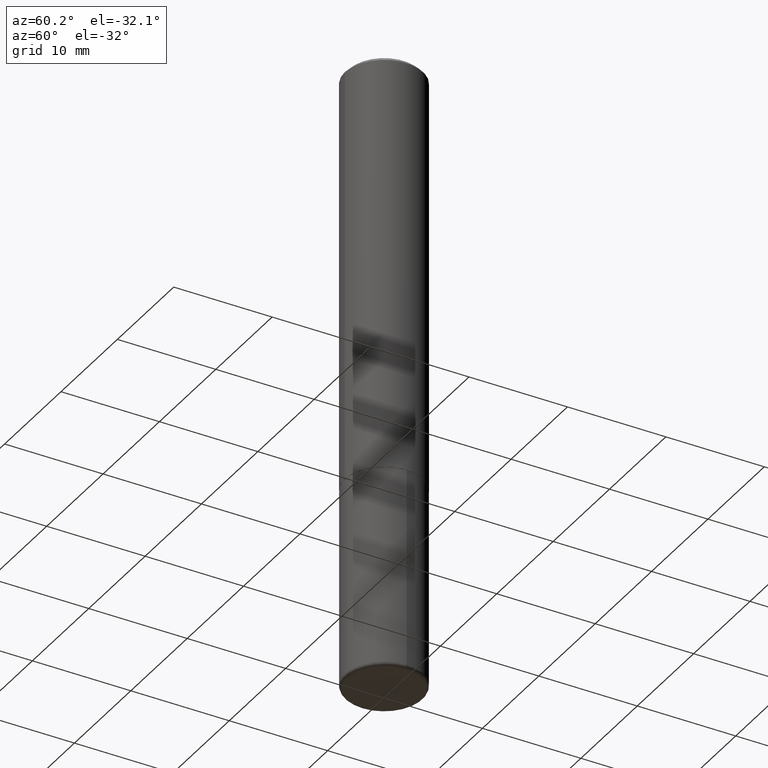
[diagram: clean part render]
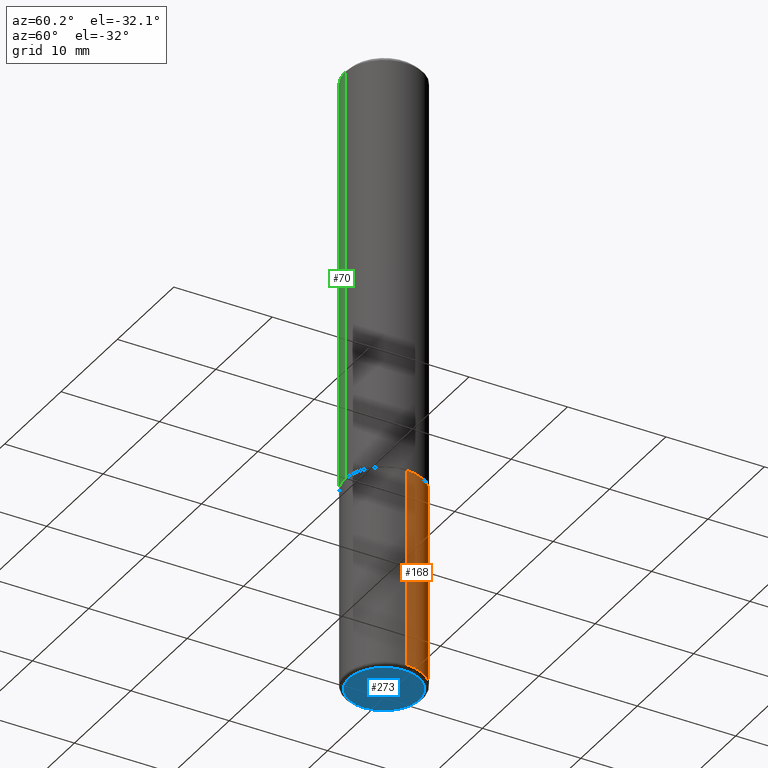
[diagram: same view with three faces highlighted in distinct colors, each labeled with its STEP entity id]
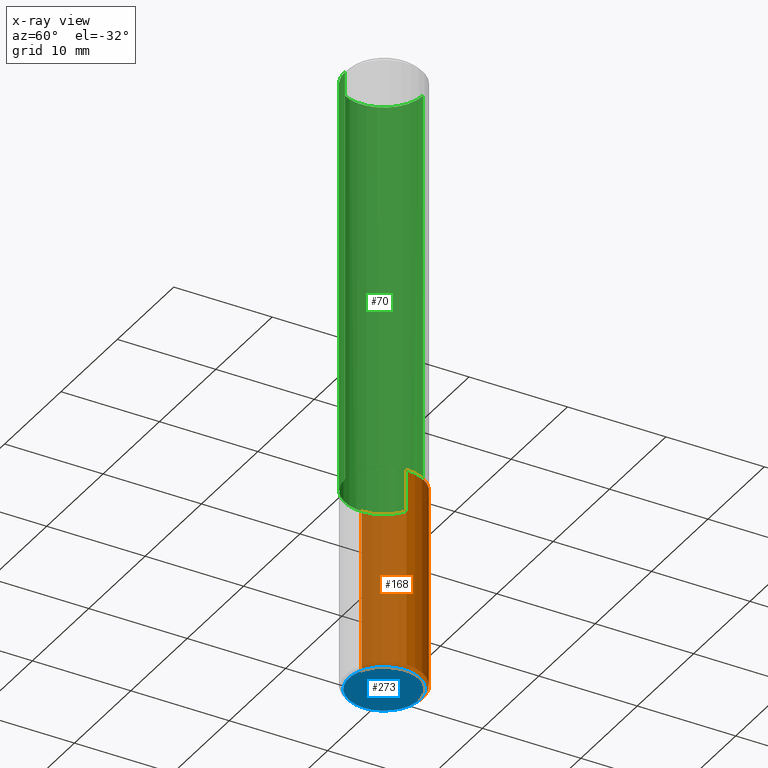
[diagram: x-ray of the same camera — body ghosted, the three highlighted faces saturated]
A machine part, auxiliary view with three faces highlighted in distinct colors.
The next image is the same camera in x-ray (body ghosted, the three faces saturated) — at least one of them is partly hidden behind the body in this view.
Their STEP definitions:

[orange] entity #168 — the highlighted cylindrical surface (partial cylindrical patch) has radius 3.9688 mm, axis along (-0, 0, 1).
#43 = AXIS2_PLACEMENT_3D ( 'NONE', #398, #150, #211 ) ;
#79 = CARTESIAN_POINT ( 'NONE',  ( 0.1562500000000000000, -6.984708418355709513E-15, -1.688000000000000167 ) ) ;
#99 = CARTESIAN_POINT ( 'NONE',  ( -0.1562500000000000000, 1.110223024625156540E-15, -7.685836078523291160E-30 ) ) ;
#101 = VERTEX_POINT ( 'NONE', #262 ) ;
#114 = DIRECTION ( 'NONE',  ( 1.000000000000000000, -6.982962677686266711E-15, 4.876176775795936353E-29 ) ) ;
#129 = AXIS2_PLACEMENT_3D ( 'NONE', #237, #147, #114 ) ;
#131 = LINE ( 'NONE', #99, #183 ) ;
#132 = EDGE_CURVE ( 'NONE', #347, #156, #271, .T. ) ;
#147 = DIRECTION ( 'NONE',  ( -2.445468806185136597E-29, 3.491481338843145583E-15, 1.000000000000000000 ) ) ;
#149 = VECTOR ( 'NONE', #357, 39.37007874015748143 ) ;
#150 = DIRECTION ( 'NONE',  ( -2.445468806185136597E-29, 3.491481338843145583E-15, 1.000000000000000000 ) ) ;
#156 = VERTEX_POINT ( 'NONE', #79 ) ;
#157 = DIRECTION ( 'NONE',  ( 1.000000000000000000, -6.982962677686270655E-15, 0.000000000000000000 ) ) ;
#165 = DIRECTION ( 'NONE',  ( -2.445468806185136597E-29, 3.491481338843145583E-15, 1.000000000000000000 ) ) ;
#168 = ADVANCED_FACE ( 'NONE', ( #334 ), #309, .T. ) ;
#183 = VECTOR ( 'NONE', #226, 39.37007874015748143 ) ;
#199 = EDGE_CURVE ( 'NONE', #156, #390, #331, .T. ) ;
#203 = ORIENTED_EDGE ( 'NONE', *, *, #394, .T. ) ;
#204 = CIRCLE ( 'NONE', #275, 0.1562499999999999722 ) ;
#211 = DIRECTION ( 'NONE',  ( 1.000000000000000000, -6.982962677686269077E-15, 0.000000000000000000 ) ) ;
#226 = DIRECTION ( 'NONE',  ( -2.445468806185136877E-29, 3.491481338843145188E-15, 1.000000000000000000 ) ) ;
#237 = CARTESIAN_POINT ( 'NONE',  ( 0.000000000000000000, 0.000000000000000000, 0.000000000000000000 ) ) ;
#258 = EDGE_LOOP ( 'NONE', ( #356, #203, #313, #352 ) ) ;
#262 = CARTESIAN_POINT ( 'NONE',  ( -0.1562499999999999167, -7.566108102400061717E-15, -2.484999999999999876 ) ) ;
#271 = LINE ( 'NONE', #386, #149 ) ;
#275 = AXIS2_PLACEMENT_3D ( 'NONE', #415, #165, #157 ) ;
#300 = CARTESIAN_POINT ( 'NONE',  ( -0.1562500000000000000, -6.174752788871067364E-15, -1.688000000000000167 ) ) ;
#309 = CYLINDRICAL_SURFACE ( 'NONE', #129, 0.1562500000000000000 ) ;
#313 = ORIENTED_EDGE ( 'NONE', *, *, #199, .F. ) ;
#328 = EDGE_CURVE ( 'NONE', #347, #101, #204, .T. ) ;
#331 = CIRCLE ( 'NONE', #43, 0.1562500000000000000 ) ;
#334 = FACE_OUTER_BOUND ( 'NONE', #258, .T. ) ;
#347 = VERTEX_POINT ( 'NONE', #355 ) ;
#352 = ORIENTED_EDGE ( 'NONE', *, *, #132, .F. ) ;
#355 = CARTESIAN_POINT ( 'NONE',  ( 0.1562499999999999167, -9.767419045413696643E-15, -2.484999999999999876 ) ) ;
#356 = ORIENTED_EDGE ( 'NONE', *, *, #328, .T. ) ;
#357 = DIRECTION ( 'NONE',  ( -2.445468806185136877E-29, 3.491481338843145188E-15, 1.000000000000000000 ) ) ;
#386 = CARTESIAN_POINT ( 'NONE',  ( 0.1562500000000000000, -1.091087918388479174E-15, 7.619026212181150377E-30 ) ) ;
#390 = VERTEX_POINT ( 'NONE', #300 ) ;
#394 = EDGE_CURVE ( 'NONE', #101, #390, #131, .T. ) ;
#398 = CARTESIAN_POINT ( 'NONE',  ( 4.127951344840510809E-29, -5.893620499967230340E-15, -1.688000000000000167 ) ) ;
#415 = CARTESIAN_POINT ( 'NONE',  ( 6.076989983370064174E-29, -8.676331127025216680E-15, -2.484999999999999876 ) ) ;

[blue] entity #273 — the highlighted planar face has unit normal (0, -0, -1).
#7 = VERTEX_POINT ( 'NONE', #52 ) ;
#17 = EDGE_LOOP ( 'NONE', ( #385, #364 ) ) ;
#27 = CARTESIAN_POINT ( 'NONE',  ( 0.1412499999999999867, -9.715046825331048380E-15, -2.499999999999999556 ) ) ;
#52 = CARTESIAN_POINT ( 'NONE',  ( -0.1412499999999999867, -7.645584917623391438E-15, -2.499999999999999556 ) ) ;
#90 = FACE_OUTER_BOUND ( 'NONE', #17, .T. ) ;
#106 = EDGE_CURVE ( 'NONE', #276, #7, #397, .T. ) ;
#113 = PLANE ( 'NONE',  #304 ) ;
#121 = DIRECTION ( 'NONE',  ( -2.445468806185136597E-29, 3.491481338843145583E-15, 1.000000000000000000 ) ) ;
#128 = DIRECTION ( 'NONE',  ( -1.000000000000000000, 6.982962677686265922E-15, -4.876176775795935793E-29 ) ) ;
#134 = DIRECTION ( 'NONE',  ( 1.000000000000000000, -6.982962677686270655E-15, 0.000000000000000000 ) ) ;
#227 = DIRECTION ( 'NONE',  ( -2.445468806185136597E-29, 3.491481338843145583E-15, 1.000000000000000000 ) ) ;
#246 = CARTESIAN_POINT ( 'NONE',  ( 1.286637735382378644E-28, 9.415550375444000163E-16, -2.500000000000000000 ) ) ;
#254 = EDGE_CURVE ( 'NONE', #7, #276, #363, .T. ) ;
#273 = ADVANCED_FACE ( 'NONE', ( #90 ), #113, .T. ) ;
#276 = VERTEX_POINT ( 'NONE', #27 ) ;
#279 = AXIS2_PLACEMENT_3D ( 'NONE', #379, #227, #134 ) ;
#304 = AXIS2_PLACEMENT_3D ( 'NONE', #246, #418, #128 ) ;
#317 = DIRECTION ( 'NONE',  ( 1.000000000000000000, -6.982962677686270655E-15, 0.000000000000000000 ) ) ;
#363 = CIRCLE ( 'NONE', #399, 0.1412499999999999867 ) ;
#364 = ORIENTED_EDGE ( 'NONE', *, *, #254, .F. ) ;
#379 = CARTESIAN_POINT ( 'NONE',  ( 6.113672015462840371E-29, -8.728703347107863365E-15, -2.499999999999999556 ) ) ;
#385 = ORIENTED_EDGE ( 'NONE', *, *, #106, .F. ) ;
#397 = CIRCLE ( 'NONE', #279, 0.1412499999999999867 ) ;
#399 = AXIS2_PLACEMENT_3D ( 'NONE', #405, #121, #317 ) ;
#405 = CARTESIAN_POINT ( 'NONE',  ( 6.113672015462840371E-29, -8.728703347107863365E-15, -2.499999999999999556 ) ) ;
#418 = DIRECTION ( 'NONE',  ( 2.438088387897960049E-29, -3.491481338843145188E-15, -1.000000000000000000 ) ) ;

[green] entity #70 — the highlighted cylindrical surface (partial cylindrical patch) has radius 3.9688 mm, axis along (-0, 0, 1).
#5 = CARTESIAN_POINT ( 'NONE',  ( 1.110223024625157132E-15, 0.1562500000000001110, -5.456616933842580190E-16 ) ) ;
#6 = EDGE_CURVE ( 'NONE', #141, #178, #191, .T. ) ;
#14 = VERTEX_POINT ( 'NONE', #24 ) ;
#22 = VECTOR ( 'NONE', #342, 39.37007874015748143 ) ;
#23 = AXIS2_PLACEMENT_3D ( 'NONE', #232, #59, #68 ) ;
#24 = CARTESIAN_POINT ( 'NONE',  ( 1.110223024625178234E-15, 0.1562499999999943101, -1.687000000000000499 ) ) ;
#37 = LINE ( 'NONE', #5, #161 ) ;
#53 = EDGE_LOOP ( 'NONE', ( #111, #255, #71, #359 ) ) ;
#54 = CARTESIAN_POINT ( 'NONE',  ( -1.071952812151801215E-15, -0.1562500000000000833, -0.01999999999999948694 ) ) ;
#59 = DIRECTION ( 'NONE',  ( -2.444942640774083791E-29, 3.492234837659248797E-15, 1.000000000000000000 ) ) ;
#61 = CARTESIAN_POINT ( 'NONE',  ( 0.000000000000000000, 0.000000000000000000, 0.000000000000000000 ) ) ;
#64 = CARTESIAN_POINT ( 'NONE',  ( -1.091087918388439336E-15, -0.1562500000000061062, -1.686999999999999611 ) ) ;
#68 = DIRECTION ( 'NONE',  ( -6.982962677686265922E-15, -1.000000000000000000, 3.496765431890251792E-15 ) ) ;
#69 = DIRECTION ( 'NONE',  ( -2.444942640774083791E-29, 3.492234837659248797E-15, 1.000000000000000000 ) ) ;
#70 = ADVANCED_FACE ( 'NONE', ( #140 ), #102, .T. ) ;
#71 = ORIENTED_EDGE ( 'NONE', *, *, #6, .T. ) ;
#85 = AXIS2_PLACEMENT_3D ( 'NONE', #61, #163, #95 ) ;
#95 = DIRECTION ( 'NONE',  ( -6.982962677686265922E-15, -1.000000000000000000, 3.492234837659248797E-15 ) ) ;
#97 = EDGE_CURVE ( 'NONE', #217, #178, #389, .T. ) ;
#102 = CYLINDRICAL_SURFACE ( 'NONE', #85, 0.1562500000000001110 ) ;
#111 = ORIENTED_EDGE ( 'NONE', *, *, #130, .F. ) ;
#130 = EDGE_CURVE ( 'NONE', #14, #217, #37, .T. ) ;
#140 = FACE_OUTER_BOUND ( 'NONE', #53, .T. ) ;
#141 = VERTEX_POINT ( 'NONE', #64 ) ;
#161 = VECTOR ( 'NONE', #235, 39.37007874015748143 ) ;
#163 = DIRECTION ( 'NONE',  ( -2.444942640774083791E-29, 3.492234837659248797E-15, 1.000000000000000000 ) ) ;
#167 = DIRECTION ( 'NONE',  ( -6.982962677686265133E-15, -1.000000000000000000, 3.496765431890256920E-15 ) ) ;
#170 = AXIS2_PLACEMENT_3D ( 'NONE', #266, #69, #167 ) ;
#178 = VERTEX_POINT ( 'NONE', #54 ) ;
#191 = LINE ( 'NONE', #316, #22 ) ;
#217 = VERTEX_POINT ( 'NONE', #337 ) ;
#232 = CARTESIAN_POINT ( 'NONE',  ( 4.124618234985879242E-29, -5.891400171131153383E-15, -1.687000000000000055 ) ) ;
#235 = DIRECTION ( 'NONE',  ( -2.444942640774083791E-29, 3.492234837659248797E-15, 1.000000000000000000 ) ) ;
#255 = ORIENTED_EDGE ( 'NONE', *, *, #312, .T. ) ;
#266 = CARTESIAN_POINT ( 'NONE',  ( 4.889885281548175324E-31, -6.984469675318509427E-17, -0.02000000000000003511 ) ) ;
#312 = EDGE_CURVE ( 'NONE', #14, #141, #382, .T. ) ;
#316 = CARTESIAN_POINT ( 'NONE',  ( -1.091087918388479765E-15, -0.1562500000000001110, 5.456616933842580190E-16 ) ) ;
#337 = CARTESIAN_POINT ( 'NONE',  ( 1.091087918388479568E-15, 0.1562499999999999445, -0.02000000000000057981 ) ) ;
#342 = DIRECTION ( 'NONE',  ( -2.444942640774083791E-29, 3.492234837659248797E-15, 1.000000000000000000 ) ) ;
#359 = ORIENTED_EDGE ( 'NONE', *, *, #97, .F. ) ;
#382 = CIRCLE ( 'NONE', #23, 0.1562500000000002220 ) ;
#389 = CIRCLE ( 'NONE', #170, 0.1562500000000000000 ) ;